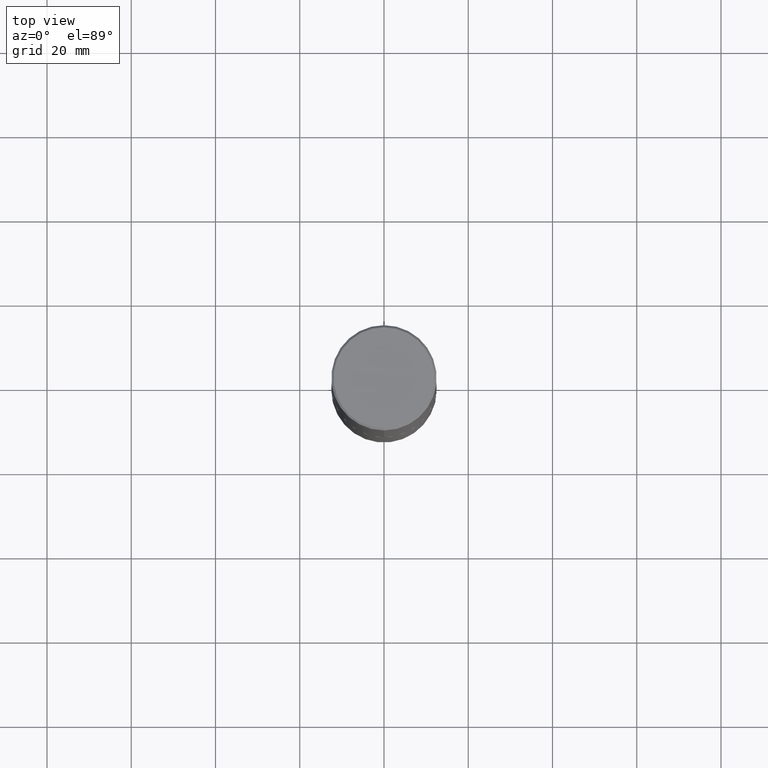
[diagram: clean part render]
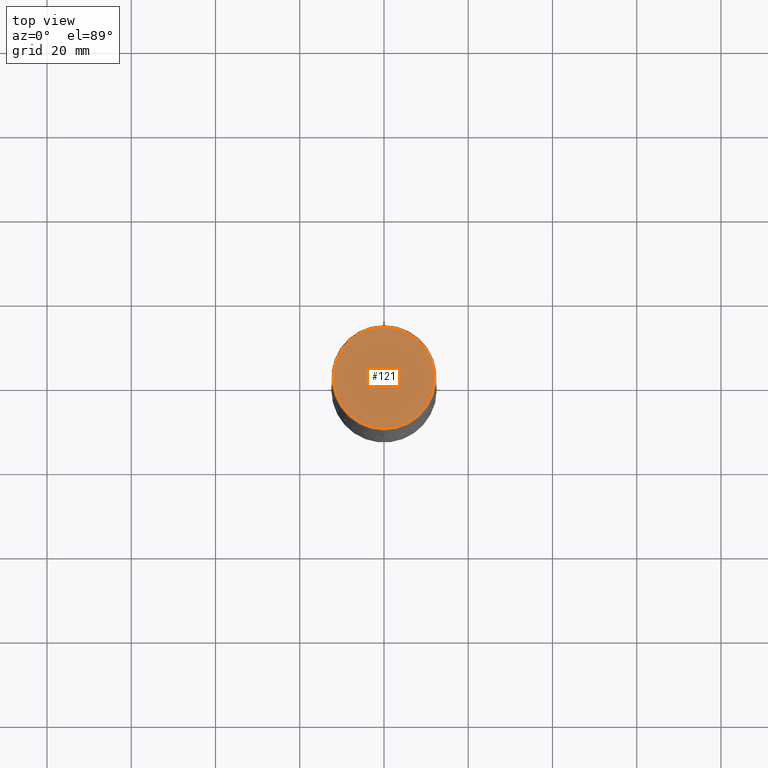
[diagram: same view with one face highlighted and labeled with its STEP entity id]
A machine part, top view. The second image highlights one B-rep face of the part: STEP entity #121.
In plain terms, the highlighted planar face has unit normal (0, -0, -1).
Its self-contained STEP definition (entity closure, byte-faithful):
#6 = DIRECTION ( 'NONE',  ( 6.982962677686265922E-15, 1.000000000000000000, -3.490754157143982552E-15 ) ) ;
#18 = DIRECTION ( 'NONE',  ( -2.445976594451651952E-29, 3.490754157143982552E-15, 1.000000000000000000 ) ) ;
#30 = CARTESIAN_POINT ( 'NONE',  ( -5.420756467185317189E-45, 7.736185299407739239E-31, 2.216193106459615290E-16 ) ) ;
#45 = CARTESIAN_POINT ( 'NONE',  ( -3.307789109625541747E-15, -0.4721499999999996255, 1.869778885941491673E-15 ) ) ;
#49 = ORIENTED_EDGE ( 'NONE', *, *, #322, .T. ) ;
#91 = AXIS2_PLACEMENT_3D ( 'NONE', #308, #18, #396 ) ;
#97 = DIRECTION ( 'NONE',  ( -2.445976594451651952E-29, 3.490754157143982552E-15, 1.000000000000000000 ) ) ;
#102 = DIRECTION ( 'NONE',  ( 2.445976594451651392E-29, -3.490754157143982552E-15, -1.000000000000000000 ) ) ;
#118 = EDGE_LOOP ( 'NONE', ( #302, #49 ) ) ;
#121 = ADVANCED_FACE ( 'NONE', ( #352 ), #199, .F. ) ;
#129 = EDGE_CURVE ( 'NONE', #153, #335, #238, .T. ) ;
#153 = VERTEX_POINT ( 'NONE', #321 ) ;
#167 = DIRECTION ( 'NONE',  ( -6.982962677686265922E-15, -1.000000000000000000, 3.490754157143982946E-15 ) ) ;
#169 = CARTESIAN_POINT ( 'NONE',  ( 3.297005828269567997E-15, 0.4721499999999996255, -1.537349919972549256E-15 ) ) ;
#199 = PLANE ( 'NONE',  #201 ) ;
#201 = AXIS2_PLACEMENT_3D ( 'NONE', #169, #102, #6 ) ;
#238 = CIRCLE ( 'NONE', #385, 0.4721499999999996255 ) ;
#302 = ORIENTED_EDGE ( 'NONE', *, *, #129, .T. ) ;
#308 = CARTESIAN_POINT ( 'NONE',  ( -5.420756467185317189E-45, 7.736185299407739239E-31, 2.216193106459615290E-16 ) ) ;
#321 = CARTESIAN_POINT ( 'NONE',  ( 3.366835455046432084E-15, 0.4721499999999996255, -1.426540264649568516E-15 ) ) ;
#322 = EDGE_CURVE ( 'NONE', #335, #153, #338, .T. ) ;
#335 = VERTEX_POINT ( 'NONE', #45 ) ;
#338 = CIRCLE ( 'NONE', #91, 0.4721499999999996255 ) ;
#352 = FACE_OUTER_BOUND ( 'NONE', #118, .T. ) ;
#385 = AXIS2_PLACEMENT_3D ( 'NONE', #30, #97, #167 ) ;
#396 = DIRECTION ( 'NONE',  ( -6.982962677686265922E-15, -1.000000000000000000, 3.490754157143982946E-15 ) ) ;